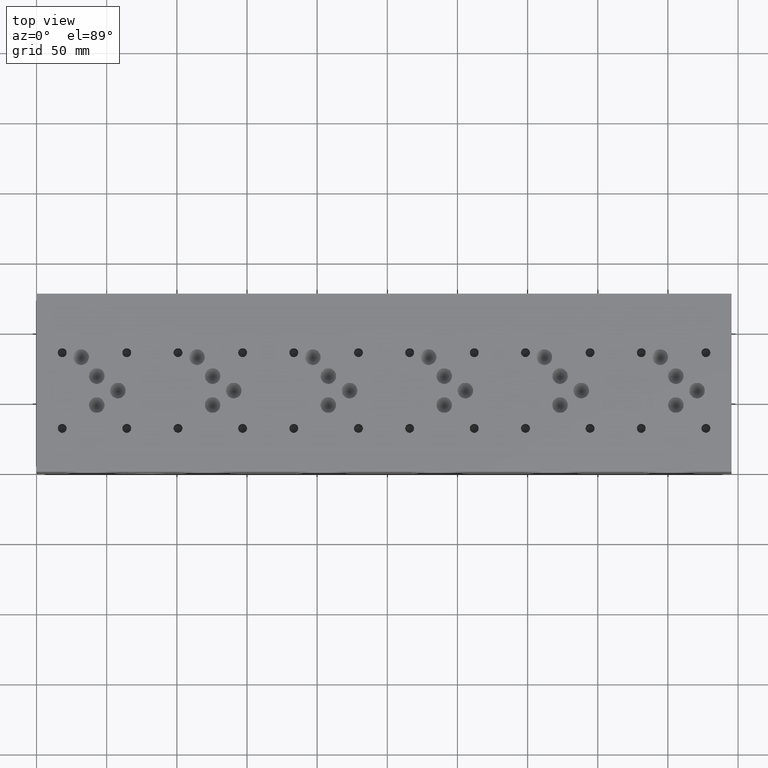
[diagram: clean part render]
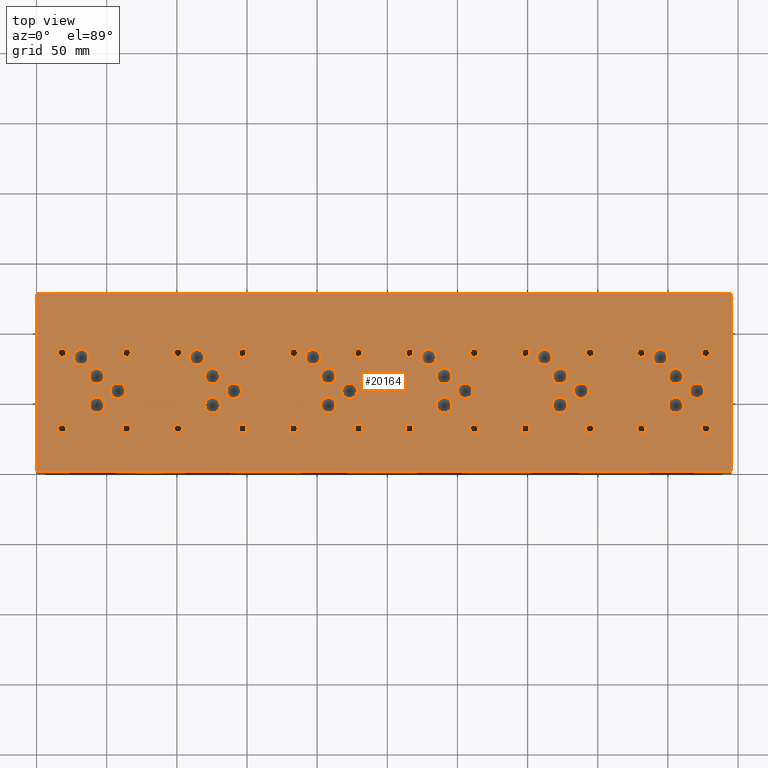
[diagram: same view with one face highlighted and labeled with its STEP entity id]
A machine part, top view. The second image highlights one B-rep face of the part: STEP entity #20164.
In plain terms, the highlighted planar face has unit normal (0, 0, 1).
Its self-contained STEP definition (entity closure, byte-faithful):
#943=CIRCLE('',#21228,5.55625);
#944=CIRCLE('',#21229,5.55625);
#947=CIRCLE('',#21234,5.55625);
#948=CIRCLE('',#21235,5.55625);
#951=CIRCLE('',#21240,5.5626);
#952=CIRCLE('',#21241,5.5626);
#955=CIRCLE('',#21246,5.5626);
#956=CIRCLE('',#21247,5.5626);
#959=CIRCLE('',#21252,5.5626);
#960=CIRCLE('',#21253,5.5626);
#963=CIRCLE('',#21258,5.5626);
#964=CIRCLE('',#21259,5.5626);
#967=CIRCLE('',#21264,5.5626);
#968=CIRCLE('',#21265,5.5626);
#971=CIRCLE('',#21270,5.5626);
#972=CIRCLE('',#21271,5.5626);
#975=CIRCLE('',#21276,5.5626);
#976=CIRCLE('',#21277,5.5626);
#979=CIRCLE('',#21282,5.5626);
#980=CIRCLE('',#21283,5.5626);
#983=CIRCLE('',#21288,5.5626);
#984=CIRCLE('',#21289,5.5626);
#987=CIRCLE('',#21294,5.5626);
#988=CIRCLE('',#21295,5.5626);
#991=CIRCLE('',#21300,5.5626);
#992=CIRCLE('',#21301,5.5626);
#995=CIRCLE('',#21306,5.5626);
#996=CIRCLE('',#21307,5.5626);
#999=CIRCLE('',#21312,5.5626);
#1000=CIRCLE('',#21313,5.5626);
#1003=CIRCLE('',#21318,5.5626);
#1004=CIRCLE('',#21319,5.5626);
#1007=CIRCLE('',#21324,5.5626);
#1008=CIRCLE('',#21325,5.5626);
#1011=CIRCLE('',#21330,5.5626);
#1012=CIRCLE('',#21331,5.5626);
#1015=CIRCLE('',#21336,5.5626);
#1016=CIRCLE('',#21337,5.5626);
#1019=CIRCLE('',#21342,5.5626);
#1020=CIRCLE('',#21343,5.5626);
#1023=CIRCLE('',#21348,5.5626);
#1024=CIRCLE('',#21349,5.5626);
#1027=CIRCLE('',#21354,5.5626);
#1028=CIRCLE('',#21355,5.5626);
#1031=CIRCLE('',#21360,5.5626);
#1032=CIRCLE('',#21361,5.5626);
#1035=CIRCLE('',#21366,5.5626);
#1036=CIRCLE('',#21367,5.5626);
#1042=CIRCLE('',#21376,3.175);
#1043=CIRCLE('',#21377,3.175);
#1049=CIRCLE('',#21387,3.175);
#1050=CIRCLE('',#21388,3.175);
#1056=CIRCLE('',#21398,3.175);
#1057=CIRCLE('',#21399,3.175);
#1063=CIRCLE('',#21409,3.175);
#1064=CIRCLE('',#21410,3.175);
#1070=CIRCLE('',#21420,3.175);
#1071=CIRCLE('',#21421,3.175);
#1077=CIRCLE('',#21431,3.175);
#1078=CIRCLE('',#21432,3.175);
#1084=CIRCLE('',#21442,3.175);
#1085=CIRCLE('',#21443,3.175);
#1091=CIRCLE('',#21453,3.175);
#1092=CIRCLE('',#21454,3.175);
#1098=CIRCLE('',#21464,3.175);
#1099=CIRCLE('',#21465,3.175);
#1105=CIRCLE('',#21475,3.175);
#1106=CIRCLE('',#21476,3.175);
#1112=CIRCLE('',#21486,3.175);
#1113=CIRCLE('',#21487,3.175);
#1119=CIRCLE('',#21497,3.175);
#1120=CIRCLE('',#21498,3.175);
#1126=CIRCLE('',#21508,3.175);
#1127=CIRCLE('',#21509,3.175);
#1133=CIRCLE('',#21519,3.175);
#1134=CIRCLE('',#21520,3.175);
#1140=CIRCLE('',#21530,3.175);
#1141=CIRCLE('',#21531,3.175);
#1147=CIRCLE('',#21541,3.175);
#1148=CIRCLE('',#21542,3.175);
#1154=CIRCLE('',#21552,3.175);
#1155=CIRCLE('',#21553,3.175);
#1161=CIRCLE('',#21563,3.175);
#1162=CIRCLE('',#21564,3.175);
#1168=CIRCLE('',#21574,3.175);
#1169=CIRCLE('',#21575,3.175);
#1175=CIRCLE('',#21585,3.175);
#1176=CIRCLE('',#21586,3.175);
#1182=CIRCLE('',#21596,3.175);
#1183=CIRCLE('',#21597,3.175);
#1189=CIRCLE('',#21607,3.175);
#1190=CIRCLE('',#21608,3.175);
#1196=CIRCLE('',#21618,3.175);
#1197=CIRCLE('',#21619,3.175);
#1203=CIRCLE('',#21629,3.175);
#1204=CIRCLE('',#21630,3.175);
#1851=FACE_BOUND('',#4164,.T.);
#1852=FACE_BOUND('',#4165,.T.);
#1853=FACE_BOUND('',#4166,.T.);
#1854=FACE_BOUND('',#4167,.T.);
#1855=FACE_BOUND('',#4168,.T.);
#1856=FACE_BOUND('',#4169,.T.);
#1857=FACE_BOUND('',#4170,.T.);
#1858=FACE_BOUND('',#4171,.T.);
#1859=FACE_BOUND('',#4172,.T.);
#1860=FACE_BOUND('',#4173,.T.);
#1861=FACE_BOUND('',#4174,.T.);
#1862=FACE_BOUND('',#4175,.T.);
#1863=FACE_BOUND('',#4176,.T.);
#1864=FACE_BOUND('',#4177,.T.);
#1865=FACE_BOUND('',#4178,.T.);
#1866=FACE_BOUND('',#4179,.T.);
#1867=FACE_BOUND('',#4180,.T.);
#1868=FACE_BOUND('',#4181,.T.);
#1869=FACE_BOUND('',#4182,.T.);
#1870=FACE_BOUND('',#4183,.T.);
#1871=FACE_BOUND('',#4184,.T.);
#1872=FACE_BOUND('',#4185,.T.);
#1873=FACE_BOUND('',#4186,.T.);
#1874=FACE_BOUND('',#4187,.T.);
#1875=FACE_BOUND('',#4188,.T.);
#1876=FACE_BOUND('',#4189,.T.);
#1877=FACE_BOUND('',#4190,.T.);
#1878=FACE_BOUND('',#4191,.T.);
#1879=FACE_BOUND('',#4192,.T.);
#1880=FACE_BOUND('',#4193,.T.);
#1881=FACE_BOUND('',#4194,.T.);
#1882=FACE_BOUND('',#4195,.T.);
#1883=FACE_BOUND('',#4196,.T.);
#1884=FACE_BOUND('',#4197,.T.);
#1885=FACE_BOUND('',#4198,.T.);
#1886=FACE_BOUND('',#4199,.T.);
#1887=FACE_BOUND('',#4200,.T.);
#1888=FACE_BOUND('',#4201,.T.);
#1889=FACE_BOUND('',#4202,.T.);
#1890=FACE_BOUND('',#4203,.T.);
#1891=FACE_BOUND('',#4204,.T.);
#1892=FACE_BOUND('',#4205,.T.);
#1893=FACE_BOUND('',#4206,.T.);
#1894=FACE_BOUND('',#4207,.T.);
#1895=FACE_BOUND('',#4208,.T.);
#1896=FACE_BOUND('',#4209,.T.);
#1897=FACE_BOUND('',#4210,.T.);
#1898=FACE_BOUND('',#4211,.T.);
#2952=FACE_OUTER_BOUND('',#4163,.T.);
#4163=EDGE_LOOP('',(#17838,#17839,#17840,#17841));
#4164=EDGE_LOOP('',(#17842,#17843));
#4165=EDGE_LOOP('',(#17844,#17845));
#4166=EDGE_LOOP('',(#17846,#17847));
#4167=EDGE_LOOP('',(#17848,#17849));
#4168=EDGE_LOOP('',(#17850,#17851));
#4169=EDGE_LOOP('',(#17852,#17853));
#4170=EDGE_LOOP('',(#17854,#17855));
#4171=EDGE_LOOP('',(#17856,#17857));
#4172=EDGE_LOOP('',(#17858,#17859));
#4173=EDGE_LOOP('',(#17860,#17861));
#4174=EDGE_LOOP('',(#17862,#17863));
#4175=EDGE_LOOP('',(#17864,#17865));
#4176=EDGE_LOOP('',(#17866,#17867));
#4177=EDGE_LOOP('',(#17868,#17869));
#4178=EDGE_LOOP('',(#17870,#17871));
#4179=EDGE_LOOP('',(#17872,#17873));
#4180=EDGE_LOOP('',(#17874,#17875));
#4181=EDGE_LOOP('',(#17876,#17877));
#4182=EDGE_LOOP('',(#17878,#17879));
#4183=EDGE_LOOP('',(#17880,#17881));
#4184=EDGE_LOOP('',(#17882,#17883));
#4185=EDGE_LOOP('',(#17884,#17885));
#4186=EDGE_LOOP('',(#17886,#17887));
#4187=EDGE_LOOP('',(#17888,#17889));
#4188=EDGE_LOOP('',(#17890,#17891));
#4189=EDGE_LOOP('',(#17892,#17893));
#4190=EDGE_LOOP('',(#17894,#17895));
#4191=EDGE_LOOP('',(#17896,#17897));
#4192=EDGE_LOOP('',(#17898,#17899));
#4193=EDGE_LOOP('',(#17900,#17901));
#4194=EDGE_LOOP('',(#17902,#17903));
#4195=EDGE_LOOP('',(#17904,#17905));
#4196=EDGE_LOOP('',(#17906,#17907));
#4197=EDGE_LOOP('',(#17908,#17909));
#4198=EDGE_LOOP('',(#17910,#17911));
#4199=EDGE_LOOP('',(#17912,#17913));
#4200=EDGE_LOOP('',(#17914,#17915));
#4201=EDGE_LOOP('',(#17916,#17917));
#4202=EDGE_LOOP('',(#17918,#17919));
#4203=EDGE_LOOP('',(#17920,#17921));
#4204=EDGE_LOOP('',(#17922,#17923));
#4205=EDGE_LOOP('',(#17924,#17925));
#4206=EDGE_LOOP('',(#17926,#17927));
#4207=EDGE_LOOP('',(#17928,#17929));
#4208=EDGE_LOOP('',(#17930,#17931));
#4209=EDGE_LOOP('',(#17932,#17933));
#4210=EDGE_LOOP('',(#17934,#17935));
#4211=EDGE_LOOP('',(#17936,#17937));
#4248=LINE('',#26302,#5919);
#4779=LINE('',#29132,#6450);
#4837=LINE('',#29403,#6508);
#5883=LINE('',#35232,#7554);
#5919=VECTOR('',#21701,10.);
#6450=VECTOR('',#22486,10.);
#6508=VECTOR('',#22598,10.);
#7554=VECTOR('',#26218,10.);
#7579=VERTEX_POINT('',#26299);
#7580=VERTEX_POINT('',#26301);
#8240=VERTEX_POINT('',#29130);
#8298=VERTEX_POINT('',#29402);
#9206=VERTEX_POINT('',#34397);
#9207=VERTEX_POINT('',#34398);
#9211=VERTEX_POINT('',#34410);
#9212=VERTEX_POINT('',#34411);
#9216=VERTEX_POINT('',#34423);
#9217=VERTEX_POINT('',#34424);
#9221=VERTEX_POINT('',#34436);
#9222=VERTEX_POINT('',#34437);
#9226=VERTEX_POINT('',#34449);
#9227=VERTEX_POINT('',#34450);
#9231=VERTEX_POINT('',#34462);
#9232=VERTEX_POINT('',#34463);
#9236=VERTEX_POINT('',#34475);
#9237=VERTEX_POINT('',#34476);
#9241=VERTEX_POINT('',#34488);
#9242=VERTEX_POINT('',#34489);
#9246=VERTEX_POINT('',#34501);
#9247=VERTEX_POINT('',#34502);
#9251=VERTEX_POINT('',#34514);
#9252=VERTEX_POINT('',#34515);
#9256=VERTEX_POINT('',#34527);
#9257=VERTEX_POINT('',#34528);
#9261=VERTEX_POINT('',#34540);
#9262=VERTEX_POINT('',#34541);
#9266=VERTEX_POINT('',#34553);
#9267=VERTEX_POINT('',#34554);
#9271=VERTEX_POINT('',#34566);
#9272=VERTEX_POINT('',#34567);
#9276=VERTEX_POINT('',#34579);
#9277=VERTEX_POINT('',#34580);
#9281=VERTEX_POINT('',#34592);
#9282=VERTEX_POINT('',#34593);
#9286=VERTEX_POINT('',#34605);
#9287=VERTEX_POINT('',#34606);
#9291=VERTEX_POINT('',#34618);
#9292=VERTEX_POINT('',#34619);
#9296=VERTEX_POINT('',#34631);
#9297=VERTEX_POINT('',#34632);
#9301=VERTEX_POINT('',#34644);
#9302=VERTEX_POINT('',#34645);
#9306=VERTEX_POINT('',#34657);
#9307=VERTEX_POINT('',#34658);
#9311=VERTEX_POINT('',#34670);
#9312=VERTEX_POINT('',#34671);
#9316=VERTEX_POINT('',#34683);
#9317=VERTEX_POINT('',#34684);
#9321=VERTEX_POINT('',#34696);
#9322=VERTEX_POINT('',#34697);
#9329=VERTEX_POINT('',#34716);
#9330=VERTEX_POINT('',#34717);
#9337=VERTEX_POINT('',#34738);
#9338=VERTEX_POINT('',#34739);
#9345=VERTEX_POINT('',#34760);
#9346=VERTEX_POINT('',#34761);
#9353=VERTEX_POINT('',#34782);
#9354=VERTEX_POINT('',#34783);
#9361=VERTEX_POINT('',#34804);
#9362=VERTEX_POINT('',#34805);
#9369=VERTEX_POINT('',#34826);
#9370=VERTEX_POINT('',#34827);
#9377=VERTEX_POINT('',#34848);
#9378=VERTEX_POINT('',#34849);
#9385=VERTEX_POINT('',#34870);
#9386=VERTEX_POINT('',#34871);
#9393=VERTEX_POINT('',#34892);
#9394=VERTEX_POINT('',#34893);
#9401=VERTEX_POINT('',#34914);
#9402=VERTEX_POINT('',#34915);
#9409=VERTEX_POINT('',#34936);
#9410=VERTEX_POINT('',#34937);
#9417=VERTEX_POINT('',#34958);
#9418=VERTEX_POINT('',#34959);
#9425=VERTEX_POINT('',#34980);
#9426=VERTEX_POINT('',#34981);
#9433=VERTEX_POINT('',#35002);
#9434=VERTEX_POINT('',#35003);
#9441=VERTEX_POINT('',#35024);
#9442=VERTEX_POINT('',#35025);
#9449=VERTEX_POINT('',#35046);
#9450=VERTEX_POINT('',#35047);
#9457=VERTEX_POINT('',#35068);
#9458=VERTEX_POINT('',#35069);
#9465=VERTEX_POINT('',#35090);
#9466=VERTEX_POINT('',#35091);
#9473=VERTEX_POINT('',#35112);
#9474=VERTEX_POINT('',#35113);
#9481=VERTEX_POINT('',#35134);
#9482=VERTEX_POINT('',#35135);
#9489=VERTEX_POINT('',#35156);
#9490=VERTEX_POINT('',#35157);
#9497=VERTEX_POINT('',#35178);
#9498=VERTEX_POINT('',#35179);
#9505=VERTEX_POINT('',#35200);
#9506=VERTEX_POINT('',#35201);
#9513=VERTEX_POINT('',#35222);
#9514=VERTEX_POINT('',#35223);
#9550=EDGE_CURVE('',#7580,#7579,#4248,.T.);
#10357=EDGE_CURVE('',#7579,#8240,#4779,.T.);
#10439=EDGE_CURVE('',#8298,#7580,#4837,.T.);
#11941=EDGE_CURVE('',#9206,#9207,#943,.T.);
#11942=EDGE_CURVE('',#9207,#9206,#944,.T.);
#11947=EDGE_CURVE('',#9211,#9212,#947,.T.);
#11948=EDGE_CURVE('',#9212,#9211,#948,.T.);
#11953=EDGE_CURVE('',#9216,#9217,#951,.T.);
#11954=EDGE_CURVE('',#9217,#9216,#952,.T.);
#11959=EDGE_CURVE('',#9221,#9222,#955,.T.);
#11960=EDGE_CURVE('',#9222,#9221,#956,.T.);
#11965=EDGE_CURVE('',#9226,#9227,#959,.T.);
#11966=EDGE_CURVE('',#9227,#9226,#960,.T.);
#11971=EDGE_CURVE('',#9231,#9232,#963,.T.);
#11972=EDGE_CURVE('',#9232,#9231,#964,.T.);
#11977=EDGE_CURVE('',#9236,#9237,#967,.T.);
#11978=EDGE_CURVE('',#9237,#9236,#968,.T.);
#11983=EDGE_CURVE('',#9241,#9242,#971,.T.);
#11984=EDGE_CURVE('',#9242,#9241,#972,.T.);
#11989=EDGE_CURVE('',#9246,#9247,#975,.T.);
#11990=EDGE_CURVE('',#9247,#9246,#976,.T.);
#11995=EDGE_CURVE('',#9251,#9252,#979,.T.);
#11996=EDGE_CURVE('',#9252,#9251,#980,.T.);
#12001=EDGE_CURVE('',#9256,#9257,#983,.T.);
#12002=EDGE_CURVE('',#9257,#9256,#984,.T.);
#12007=EDGE_CURVE('',#9261,#9262,#987,.T.);
#12008=EDGE_CURVE('',#9262,#9261,#988,.T.);
#12013=EDGE_CURVE('',#9266,#9267,#991,.T.);
#12014=EDGE_CURVE('',#9267,#9266,#992,.T.);
#12019=EDGE_CURVE('',#9271,#9272,#995,.T.);
#12020=EDGE_CURVE('',#9272,#9271,#996,.T.);
#12025=EDGE_CURVE('',#9276,#9277,#999,.T.);
#12026=EDGE_CURVE('',#9277,#9276,#1000,.T.);
#12031=EDGE_CURVE('',#9281,#9282,#1003,.T.);
#12032=EDGE_CURVE('',#9282,#9281,#1004,.T.);
#12037=EDGE_CURVE('',#9286,#9287,#1007,.T.);
#12038=EDGE_CURVE('',#9287,#9286,#1008,.T.);
#12043=EDGE_CURVE('',#9291,#9292,#1011,.T.);
#12044=EDGE_CURVE('',#9292,#9291,#1012,.T.);
#12049=EDGE_CURVE('',#9296,#9297,#1015,.T.);
#12050=EDGE_CURVE('',#9297,#9296,#1016,.T.);
#12055=EDGE_CURVE('',#9301,#9302,#1019,.T.);
#12056=EDGE_CURVE('',#9302,#9301,#1020,.T.);
#12061=EDGE_CURVE('',#9306,#9307,#1023,.T.);
#12062=EDGE_CURVE('',#9307,#9306,#1024,.T.);
#12067=EDGE_CURVE('',#9311,#9312,#1027,.T.);
#12068=EDGE_CURVE('',#9312,#9311,#1028,.T.);
#12073=EDGE_CURVE('',#9316,#9317,#1031,.T.);
#12074=EDGE_CURVE('',#9317,#9316,#1032,.T.);
#12079=EDGE_CURVE('',#9321,#9322,#1035,.T.);
#12080=EDGE_CURVE('',#9322,#9321,#1036,.T.);
#12088=EDGE_CURVE('',#9329,#9330,#1042,.T.);
#12089=EDGE_CURVE('',#9330,#9329,#1043,.T.);
#12098=EDGE_CURVE('',#9337,#9338,#1049,.T.);
#12099=EDGE_CURVE('',#9338,#9337,#1050,.T.);
#12108=EDGE_CURVE('',#9345,#9346,#1056,.T.);
#12109=EDGE_CURVE('',#9346,#9345,#1057,.T.);
#12118=EDGE_CURVE('',#9353,#9354,#1063,.T.);
#12119=EDGE_CURVE('',#9354,#9353,#1064,.T.);
#12128=EDGE_CURVE('',#9361,#9362,#1070,.T.);
#12129=EDGE_CURVE('',#9362,#9361,#1071,.T.);
#12138=EDGE_CURVE('',#9369,#9370,#1077,.T.);
#12139=EDGE_CURVE('',#9370,#9369,#1078,.T.);
#12148=EDGE_CURVE('',#9377,#9378,#1084,.T.);
#12149=EDGE_CURVE('',#9378,#9377,#1085,.T.);
#12158=EDGE_CURVE('',#9385,#9386,#1091,.T.);
#12159=EDGE_CURVE('',#9386,#9385,#1092,.T.);
#12168=EDGE_CURVE('',#9393,#9394,#1098,.T.);
#12169=EDGE_CURVE('',#9394,#9393,#1099,.T.);
#12178=EDGE_CURVE('',#9401,#9402,#1105,.T.);
#12179=EDGE_CURVE('',#9402,#9401,#1106,.T.);
#12188=EDGE_CURVE('',#9409,#9410,#1112,.T.);
#12189=EDGE_CURVE('',#9410,#9409,#1113,.T.);
#12198=EDGE_CURVE('',#9417,#9418,#1119,.T.);
#12199=EDGE_CURVE('',#9418,#9417,#1120,.T.);
#12208=EDGE_CURVE('',#9425,#9426,#1126,.T.);
#12209=EDGE_CURVE('',#9426,#9425,#1127,.T.);
#12218=EDGE_CURVE('',#9433,#9434,#1133,.T.);
#12219=EDGE_CURVE('',#9434,#9433,#1134,.T.);
#12228=EDGE_CURVE('',#9441,#9442,#1140,.T.);
#12229=EDGE_CURVE('',#9442,#9441,#1141,.T.);
#12238=EDGE_CURVE('',#9449,#9450,#1147,.T.);
#12239=EDGE_CURVE('',#9450,#9449,#1148,.T.);
#12248=EDGE_CURVE('',#9457,#9458,#1154,.T.);
#12249=EDGE_CURVE('',#9458,#9457,#1155,.T.);
#12258=EDGE_CURVE('',#9465,#9466,#1161,.T.);
#12259=EDGE_CURVE('',#9466,#9465,#1162,.T.);
#12268=EDGE_CURVE('',#9473,#9474,#1168,.T.);
#12269=EDGE_CURVE('',#9474,#9473,#1169,.T.);
#12278=EDGE_CURVE('',#9481,#9482,#1175,.T.);
#12279=EDGE_CURVE('',#9482,#9481,#1176,.T.);
#12288=EDGE_CURVE('',#9489,#9490,#1182,.T.);
#12289=EDGE_CURVE('',#9490,#9489,#1183,.T.);
#12298=EDGE_CURVE('',#9497,#9498,#1189,.T.);
#12299=EDGE_CURVE('',#9498,#9497,#1190,.T.);
#12308=EDGE_CURVE('',#9505,#9506,#1196,.T.);
#12309=EDGE_CURVE('',#9506,#9505,#1197,.T.);
#12318=EDGE_CURVE('',#9513,#9514,#1203,.T.);
#12319=EDGE_CURVE('',#9514,#9513,#1204,.T.);
#12323=EDGE_CURVE('',#8240,#8298,#5883,.T.);
#17838=ORIENTED_EDGE('',*,*,#9550,.T.);
#17839=ORIENTED_EDGE('',*,*,#10357,.T.);
#17840=ORIENTED_EDGE('',*,*,#12323,.T.);
#17841=ORIENTED_EDGE('',*,*,#10439,.T.);
#17842=ORIENTED_EDGE('',*,*,#11941,.T.);
#17843=ORIENTED_EDGE('',*,*,#11942,.T.);
#17844=ORIENTED_EDGE('',*,*,#11947,.T.);
#17845=ORIENTED_EDGE('',*,*,#11948,.T.);
#17846=ORIENTED_EDGE('',*,*,#11953,.T.);
#17847=ORIENTED_EDGE('',*,*,#11954,.T.);
#17848=ORIENTED_EDGE('',*,*,#11959,.T.);
#17849=ORIENTED_EDGE('',*,*,#11960,.T.);
#17850=ORIENTED_EDGE('',*,*,#11965,.T.);
#17851=ORIENTED_EDGE('',*,*,#11966,.T.);
#17852=ORIENTED_EDGE('',*,*,#11971,.T.);
#17853=ORIENTED_EDGE('',*,*,#11972,.T.);
#17854=ORIENTED_EDGE('',*,*,#11977,.T.);
#17855=ORIENTED_EDGE('',*,*,#11978,.T.);
#17856=ORIENTED_EDGE('',*,*,#11983,.T.);
#17857=ORIENTED_EDGE('',*,*,#11984,.T.);
#17858=ORIENTED_EDGE('',*,*,#11989,.T.);
#17859=ORIENTED_EDGE('',*,*,#11990,.T.);
#17860=ORIENTED_EDGE('',*,*,#11995,.T.);
#17861=ORIENTED_EDGE('',*,*,#11996,.T.);
#17862=ORIENTED_EDGE('',*,*,#12001,.T.);
#17863=ORIENTED_EDGE('',*,*,#12002,.T.);
#17864=ORIENTED_EDGE('',*,*,#12007,.T.);
#17865=ORIENTED_EDGE('',*,*,#12008,.T.);
#17866=ORIENTED_EDGE('',*,*,#12013,.T.);
#17867=ORIENTED_EDGE('',*,*,#12014,.T.);
#17868=ORIENTED_EDGE('',*,*,#12019,.T.);
#17869=ORIENTED_EDGE('',*,*,#12020,.T.);
#17870=ORIENTED_EDGE('',*,*,#12025,.T.);
#17871=ORIENTED_EDGE('',*,*,#12026,.T.);
#17872=ORIENTED_EDGE('',*,*,#12031,.T.);
#17873=ORIENTED_EDGE('',*,*,#12032,.T.);
#17874=ORIENTED_EDGE('',*,*,#12037,.T.);
#17875=ORIENTED_EDGE('',*,*,#12038,.T.);
#17876=ORIENTED_EDGE('',*,*,#12043,.T.);
#17877=ORIENTED_EDGE('',*,*,#12044,.T.);
#17878=ORIENTED_EDGE('',*,*,#12049,.T.);
#17879=ORIENTED_EDGE('',*,*,#12050,.T.);
#17880=ORIENTED_EDGE('',*,*,#12055,.T.);
#17881=ORIENTED_EDGE('',*,*,#12056,.T.);
#17882=ORIENTED_EDGE('',*,*,#12061,.T.);
#17883=ORIENTED_EDGE('',*,*,#12062,.T.);
#17884=ORIENTED_EDGE('',*,*,#12067,.T.);
#17885=ORIENTED_EDGE('',*,*,#12068,.T.);
#17886=ORIENTED_EDGE('',*,*,#12073,.T.);
#17887=ORIENTED_EDGE('',*,*,#12074,.T.);
#17888=ORIENTED_EDGE('',*,*,#12079,.T.);
#17889=ORIENTED_EDGE('',*,*,#12080,.T.);
#17890=ORIENTED_EDGE('',*,*,#12088,.T.);
#17891=ORIENTED_EDGE('',*,*,#12089,.T.);
#17892=ORIENTED_EDGE('',*,*,#12098,.T.);
#17893=ORIENTED_EDGE('',*,*,#12099,.T.);
#17894=ORIENTED_EDGE('',*,*,#12108,.T.);
#17895=ORIENTED_EDGE('',*,*,#12109,.T.);
#17896=ORIENTED_EDGE('',*,*,#12118,.T.);
#17897=ORIENTED_EDGE('',*,*,#12119,.T.);
#17898=ORIENTED_EDGE('',*,*,#12128,.T.);
#17899=ORIENTED_EDGE('',*,*,#12129,.T.);
#17900=ORIENTED_EDGE('',*,*,#12138,.T.);
#17901=ORIENTED_EDGE('',*,*,#12139,.T.);
#17902=ORIENTED_EDGE('',*,*,#12148,.T.);
#17903=ORIENTED_EDGE('',*,*,#12149,.T.);
#17904=ORIENTED_EDGE('',*,*,#12158,.T.);
#17905=ORIENTED_EDGE('',*,*,#12159,.T.);
#17906=ORIENTED_EDGE('',*,*,#12168,.T.);
#17907=ORIENTED_EDGE('',*,*,#12169,.T.);
#17908=ORIENTED_EDGE('',*,*,#12178,.T.);
#17909=ORIENTED_EDGE('',*,*,#12179,.T.);
#17910=ORIENTED_EDGE('',*,*,#12188,.T.);
#17911=ORIENTED_EDGE('',*,*,#12189,.T.);
#17912=ORIENTED_EDGE('',*,*,#12198,.T.);
#17913=ORIENTED_EDGE('',*,*,#12199,.T.);
#17914=ORIENTED_EDGE('',*,*,#12208,.T.);
#17915=ORIENTED_EDGE('',*,*,#12209,.T.);
#17916=ORIENTED_EDGE('',*,*,#12218,.T.);
#17917=ORIENTED_EDGE('',*,*,#12219,.T.);
#17918=ORIENTED_EDGE('',*,*,#12228,.T.);
#17919=ORIENTED_EDGE('',*,*,#12229,.T.);
#17920=ORIENTED_EDGE('',*,*,#12238,.T.);
#17921=ORIENTED_EDGE('',*,*,#12239,.T.);
#17922=ORIENTED_EDGE('',*,*,#12248,.T.);
#17923=ORIENTED_EDGE('',*,*,#12249,.T.);
#17924=ORIENTED_EDGE('',*,*,#12258,.T.);
#17925=ORIENTED_EDGE('',*,*,#12259,.T.);
#17926=ORIENTED_EDGE('',*,*,#12268,.T.);
#17927=ORIENTED_EDGE('',*,*,#12269,.T.);
#17928=ORIENTED_EDGE('',*,*,#12278,.T.);
#17929=ORIENTED_EDGE('',*,*,#12279,.T.);
#17930=ORIENTED_EDGE('',*,*,#12288,.T.);
#17931=ORIENTED_EDGE('',*,*,#12289,.T.);
#17932=ORIENTED_EDGE('',*,*,#12298,.T.);
#17933=ORIENTED_EDGE('',*,*,#12299,.T.);
#17934=ORIENTED_EDGE('',*,*,#12308,.T.);
#17935=ORIENTED_EDGE('',*,*,#12309,.T.);
#17936=ORIENTED_EDGE('',*,*,#12318,.T.);
#17937=ORIENTED_EDGE('',*,*,#12319,.T.);
#18452=PLANE('',#21636);
#20164=ADVANCED_FACE('',(#2952,#1851,#1852,#1853,#1854,#1855,#1856,#1857,
#1858,#1859,#1860,#1861,#1862,#1863,#1864,#1865,#1866,#1867,#1868,#1869,
#1870,#1871,#1872,#1873,#1874,#1875,#1876,#1877,#1878,#1879,#1880,#1881,
#1882,#1883,#1884,#1885,#1886,#1887,#1888,#1889,#1890,#1891,#1892,#1893,
#1894,#1895,#1896,#1897,#1898),#18452,.T.);
#21228=AXIS2_PLACEMENT_3D('',#34399,#25286,#25287);
#21229=AXIS2_PLACEMENT_3D('',#34400,#25288,#25289);
#21234=AXIS2_PLACEMENT_3D('',#34412,#25300,#25301);
#21235=AXIS2_PLACEMENT_3D('',#34413,#25302,#25303);
#21240=AXIS2_PLACEMENT_3D('',#34425,#25314,#25315);
#21241=AXIS2_PLACEMENT_3D('',#34426,#25316,#25317);
#21246=AXIS2_PLACEMENT_3D('',#34438,#25328,#25329);
#21247=AXIS2_PLACEMENT_3D('',#34439,#25330,#25331);
#21252=AXIS2_PLACEMENT_3D('',#34451,#25342,#25343);
#21253=AXIS2_PLACEMENT_3D('',#34452,#25344,#25345);
#21258=AXIS2_PLACEMENT_3D('',#34464,#25356,#25357);
#21259=AXIS2_PLACEMENT_3D('',#34465,#25358,#25359);
#21264=AXIS2_PLACEMENT_3D('',#34477,#25370,#25371);
#21265=AXIS2_PLACEMENT_3D('',#34478,#25372,#25373);
#21270=AXIS2_PLACEMENT_3D('',#34490,#25384,#25385);
#21271=AXIS2_PLACEMENT_3D('',#34491,#25386,#25387);
#21276=AXIS2_PLACEMENT_3D('',#34503,#25398,#25399);
#21277=AXIS2_PLACEMENT_3D('',#34504,#25400,#25401);
#21282=AXIS2_PLACEMENT_3D('',#34516,#25412,#25413);
#21283=AXIS2_PLACEMENT_3D('',#34517,#25414,#25415);
#21288=AXIS2_PLACEMENT_3D('',#34529,#25426,#25427);
#21289=AXIS2_PLACEMENT_3D('',#34530,#25428,#25429);
#21294=AXIS2_PLACEMENT_3D('',#34542,#25440,#25441);
#21295=AXIS2_PLACEMENT_3D('',#34543,#25442,#25443);
#21300=AXIS2_PLACEMENT_3D('',#34555,#25454,#25455);
#21301=AXIS2_PLACEMENT_3D('',#34556,#25456,#25457);
#21306=AXIS2_PLACEMENT_3D('',#34568,#25468,#25469);
#21307=AXIS2_PLACEMENT_3D('',#34569,#25470,#25471);
#21312=AXIS2_PLACEMENT_3D('',#34581,#25482,#25483);
#21313=AXIS2_PLACEMENT_3D('',#34582,#25484,#25485);
#21318=AXIS2_PLACEMENT_3D('',#34594,#25496,#25497);
#21319=AXIS2_PLACEMENT_3D('',#34595,#25498,#25499);
#21324=AXIS2_PLACEMENT_3D('',#34607,#25510,#25511);
#21325=AXIS2_PLACEMENT_3D('',#34608,#25512,#25513);
#21330=AXIS2_PLACEMENT_3D('',#34620,#25524,#25525);
#21331=AXIS2_PLACEMENT_3D('',#34621,#25526,#25527);
#21336=AXIS2_PLACEMENT_3D('',#34633,#25538,#25539);
#21337=AXIS2_PLACEMENT_3D('',#34634,#25540,#25541);
#21342=AXIS2_PLACEMENT_3D('',#34646,#25552,#25553);
#21343=AXIS2_PLACEMENT_3D('',#34647,#25554,#25555);
#21348=AXIS2_PLACEMENT_3D('',#34659,#25566,#25567);
#21349=AXIS2_PLACEMENT_3D('',#34660,#25568,#25569);
#21354=AXIS2_PLACEMENT_3D('',#34672,#25580,#25581);
#21355=AXIS2_PLACEMENT_3D('',#34673,#25582,#25583);
#21360=AXIS2_PLACEMENT_3D('',#34685,#25594,#25595);
#21361=AXIS2_PLACEMENT_3D('',#34686,#25596,#25597);
#21366=AXIS2_PLACEMENT_3D('',#34698,#25608,#25609);
#21367=AXIS2_PLACEMENT_3D('',#34699,#25610,#25611);
#21376=AXIS2_PLACEMENT_3D('',#34718,#25630,#25631);
#21377=AXIS2_PLACEMENT_3D('',#34719,#25632,#25633);
#21387=AXIS2_PLACEMENT_3D('',#34740,#25655,#25656);
#21388=AXIS2_PLACEMENT_3D('',#34741,#25657,#25658);
#21398=AXIS2_PLACEMENT_3D('',#34762,#25680,#25681);
#21399=AXIS2_PLACEMENT_3D('',#34763,#25682,#25683);
#21409=AXIS2_PLACEMENT_3D('',#34784,#25705,#25706);
#21410=AXIS2_PLACEMENT_3D('',#34785,#25707,#25708);
#21420=AXIS2_PLACEMENT_3D('',#34806,#25730,#25731);
#21421=AXIS2_PLACEMENT_3D('',#34807,#25732,#25733);
#21431=AXIS2_PLACEMENT_3D('',#34828,#25755,#25756);
#21432=AXIS2_PLACEMENT_3D('',#34829,#25757,#25758);
#21442=AXIS2_PLACEMENT_3D('',#34850,#25780,#25781);
#21443=AXIS2_PLACEMENT_3D('',#34851,#25782,#25783);
#21453=AXIS2_PLACEMENT_3D('',#34872,#25805,#25806);
#21454=AXIS2_PLACEMENT_3D('',#34873,#25807,#25808);
#21464=AXIS2_PLACEMENT_3D('',#34894,#25830,#25831);
#21465=AXIS2_PLACEMENT_3D('',#34895,#25832,#25833);
#21475=AXIS2_PLACEMENT_3D('',#34916,#25855,#25856);
#21476=AXIS2_PLACEMENT_3D('',#34917,#25857,#25858);
#21486=AXIS2_PLACEMENT_3D('',#34938,#25880,#25881);
#21487=AXIS2_PLACEMENT_3D('',#34939,#25882,#25883);
#21497=AXIS2_PLACEMENT_3D('',#34960,#25905,#25906);
#21498=AXIS2_PLACEMENT_3D('',#34961,#25907,#25908);
#21508=AXIS2_PLACEMENT_3D('',#34982,#25930,#25931);
#21509=AXIS2_PLACEMENT_3D('',#34983,#25932,#25933);
#21519=AXIS2_PLACEMENT_3D('',#35004,#25955,#25956);
#21520=AXIS2_PLACEMENT_3D('',#35005,#25957,#25958);
#21530=AXIS2_PLACEMENT_3D('',#35026,#25980,#25981);
#21531=AXIS2_PLACEMENT_3D('',#35027,#25982,#25983);
#21541=AXIS2_PLACEMENT_3D('',#35048,#26005,#26006);
#21542=AXIS2_PLACEMENT_3D('',#35049,#26007,#26008);
#21552=AXIS2_PLACEMENT_3D('',#35070,#26030,#26031);
#21553=AXIS2_PLACEMENT_3D('',#35071,#26032,#26033);
#21563=AXIS2_PLACEMENT_3D('',#35092,#26055,#26056);
#21564=AXIS2_PLACEMENT_3D('',#35093,#26057,#26058);
#21574=AXIS2_PLACEMENT_3D('',#35114,#26080,#26081);
#21575=AXIS2_PLACEMENT_3D('',#35115,#26082,#26083);
#21585=AXIS2_PLACEMENT_3D('',#35136,#26105,#26106);
#21586=AXIS2_PLACEMENT_3D('',#35137,#26107,#26108);
#21596=AXIS2_PLACEMENT_3D('',#35158,#26130,#26131);
#21597=AXIS2_PLACEMENT_3D('',#35159,#26132,#26133);
#21607=AXIS2_PLACEMENT_3D('',#35180,#26155,#26156);
#21608=AXIS2_PLACEMENT_3D('',#35181,#26157,#26158);
#21618=AXIS2_PLACEMENT_3D('',#35202,#26180,#26181);
#21619=AXIS2_PLACEMENT_3D('',#35203,#26182,#26183);
#21629=AXIS2_PLACEMENT_3D('',#35224,#26205,#26206);
#21630=AXIS2_PLACEMENT_3D('',#35225,#26207,#26208);
#21636=AXIS2_PLACEMENT_3D('',#35235,#26223,#26224);
#21701=DIRECTION('',(1.,0.,0.));
#22486=DIRECTION('',(0.,1.,0.));
#22598=DIRECTION('',(0.,-1.,0.));
#25286=DIRECTION('center_axis',(0.,0.,-1.));
#25287=DIRECTION('ref_axis',(1.,0.,0.));
#25288=DIRECTION('center_axis',(0.,0.,-1.));
#25289=DIRECTION('ref_axis',(1.,0.,0.));
#25300=DIRECTION('center_axis',(0.,0.,-1.));
#25301=DIRECTION('ref_axis',(1.,0.,0.));
#25302=DIRECTION('center_axis',(0.,0.,-1.));
#25303=DIRECTION('ref_axis',(1.,0.,0.));
#25314=DIRECTION('center_axis',(0.,0.,-1.));
#25315=DIRECTION('ref_axis',(1.,0.,0.));
#25316=DIRECTION('center_axis',(0.,0.,-1.));
#25317=DIRECTION('ref_axis',(1.,0.,0.));
#25328=DIRECTION('center_axis',(0.,0.,-1.));
#25329=DIRECTION('ref_axis',(1.,0.,0.));
#25330=DIRECTION('center_axis',(0.,0.,-1.));
#25331=DIRECTION('ref_axis',(1.,0.,0.));
#25342=DIRECTION('center_axis',(0.,0.,-1.));
#25343=DIRECTION('ref_axis',(1.,0.,0.));
#25344=DIRECTION('center_axis',(0.,0.,-1.));
#25345=DIRECTION('ref_axis',(1.,0.,0.));
#25356=DIRECTION('center_axis',(0.,0.,-1.));
#25357=DIRECTION('ref_axis',(1.,0.,0.));
#25358=DIRECTION('center_axis',(0.,0.,-1.));
#25359=DIRECTION('ref_axis',(1.,0.,0.));
#25370=DIRECTION('center_axis',(0.,0.,-1.));
#25371=DIRECTION('ref_axis',(1.,0.,0.));
#25372=DIRECTION('center_axis',(0.,0.,-1.));
#25373=DIRECTION('ref_axis',(1.,0.,0.));
#25384=DIRECTION('center_axis',(0.,0.,-1.));
#25385=DIRECTION('ref_axis',(1.,0.,0.));
#25386=DIRECTION('center_axis',(0.,0.,-1.));
#25387=DIRECTION('ref_axis',(1.,0.,0.));
#25398=DIRECTION('center_axis',(0.,0.,-1.));
#25399=DIRECTION('ref_axis',(1.,0.,0.));
#25400=DIRECTION('center_axis',(0.,0.,-1.));
#25401=DIRECTION('ref_axis',(1.,0.,0.));
#25412=DIRECTION('center_axis',(0.,0.,-1.));
#25413=DIRECTION('ref_axis',(1.,0.,0.));
#25414=DIRECTION('center_axis',(0.,0.,-1.));
#25415=DIRECTION('ref_axis',(1.,0.,0.));
#25426=DIRECTION('center_axis',(0.,0.,-1.));
#25427=DIRECTION('ref_axis',(1.,0.,0.));
#25428=DIRECTION('center_axis',(0.,0.,-1.));
#25429=DIRECTION('ref_axis',(1.,0.,0.));
#25440=DIRECTION('center_axis',(0.,0.,-1.));
#25441=DIRECTION('ref_axis',(1.,0.,0.));
#25442=DIRECTION('center_axis',(0.,0.,-1.));
#25443=DIRECTION('ref_axis',(1.,0.,0.));
#25454=DIRECTION('center_axis',(0.,0.,-1.));
#25455=DIRECTION('ref_axis',(1.,0.,0.));
#25456=DIRECTION('center_axis',(0.,0.,-1.));
#25457=DIRECTION('ref_axis',(1.,0.,0.));
#25468=DIRECTION('center_axis',(0.,0.,-1.));
#25469=DIRECTION('ref_axis',(1.,0.,0.));
#25470=DIRECTION('center_axis',(0.,0.,-1.));
#25471=DIRECTION('ref_axis',(1.,0.,0.));
#25482=DIRECTION('center_axis',(0.,0.,-1.));
#25483=DIRECTION('ref_axis',(1.,0.,0.));
#25484=DIRECTION('center_axis',(0.,0.,-1.));
#25485=DIRECTION('ref_axis',(1.,0.,0.));
#25496=DIRECTION('center_axis',(0.,0.,-1.));
#25497=DIRECTION('ref_axis',(1.,0.,0.));
#25498=DIRECTION('center_axis',(0.,0.,-1.));
#25499=DIRECTION('ref_axis',(1.,0.,0.));
#25510=DIRECTION('center_axis',(0.,0.,-1.));
#25511=DIRECTION('ref_axis',(1.,0.,0.));
#25512=DIRECTION('center_axis',(0.,0.,-1.));
#25513=DIRECTION('ref_axis',(1.,0.,0.));
#25524=DIRECTION('center_axis',(0.,0.,-1.));
#25525=DIRECTION('ref_axis',(1.,0.,0.));
#25526=DIRECTION('center_axis',(0.,0.,-1.));
#25527=DIRECTION('ref_axis',(1.,0.,0.));
#25538=DIRECTION('center_axis',(0.,0.,-1.));
#25539=DIRECTION('ref_axis',(1.,0.,0.));
#25540=DIRECTION('center_axis',(0.,0.,-1.));
#25541=DIRECTION('ref_axis',(1.,0.,0.));
#25552=DIRECTION('center_axis',(0.,0.,-1.));
#25553=DIRECTION('ref_axis',(1.,0.,0.));
#25554=DIRECTION('center_axis',(0.,0.,-1.));
#25555=DIRECTION('ref_axis',(1.,0.,0.));
#25566=DIRECTION('center_axis',(0.,0.,-1.));
#25567=DIRECTION('ref_axis',(1.,0.,0.));
#25568=DIRECTION('center_axis',(0.,0.,-1.));
#25569=DIRECTION('ref_axis',(1.,0.,0.));
#25580=DIRECTION('center_axis',(0.,0.,-1.));
#25581=DIRECTION('ref_axis',(1.,0.,0.));
#25582=DIRECTION('center_axis',(0.,0.,-1.));
#25583=DIRECTION('ref_axis',(1.,0.,0.));
#25594=DIRECTION('center_axis',(0.,0.,-1.));
#25595=DIRECTION('ref_axis',(1.,0.,0.));
#25596=DIRECTION('center_axis',(0.,0.,-1.));
#25597=DIRECTION('ref_axis',(1.,0.,0.));
#25608=DIRECTION('center_axis',(0.,0.,-1.));
#25609=DIRECTION('ref_axis',(1.,0.,0.));
#25610=DIRECTION('center_axis',(0.,0.,-1.));
#25611=DIRECTION('ref_axis',(1.,0.,0.));
#25630=DIRECTION('center_axis',(0.,0.,-1.));
#25631=DIRECTION('ref_axis',(1.,0.,0.));
#25632=DIRECTION('center_axis',(0.,0.,-1.));
#25633=DIRECTION('ref_axis',(1.,0.,0.));
#25655=DIRECTION('center_axis',(0.,0.,-1.));
#25656=DIRECTION('ref_axis',(1.,0.,0.));
#25657=DIRECTION('center_axis',(0.,0.,-1.));
#25658=DIRECTION('ref_axis',(1.,0.,0.));
#25680=DIRECTION('center_axis',(0.,0.,-1.));
#25681=DIRECTION('ref_axis',(1.,0.,0.));
#25682=DIRECTION('center_axis',(0.,0.,-1.));
#25683=DIRECTION('ref_axis',(1.,0.,0.));
#25705=DIRECTION('center_axis',(0.,0.,-1.));
#25706=DIRECTION('ref_axis',(1.,0.,0.));
#25707=DIRECTION('center_axis',(0.,0.,-1.));
#25708=DIRECTION('ref_axis',(1.,0.,0.));
#25730=DIRECTION('center_axis',(0.,0.,-1.));
#25731=DIRECTION('ref_axis',(1.,0.,0.));
#25732=DIRECTION('center_axis',(0.,0.,-1.));
#25733=DIRECTION('ref_axis',(1.,0.,0.));
#25755=DIRECTION('center_axis',(0.,0.,-1.));
#25756=DIRECTION('ref_axis',(1.,0.,0.));
#25757=DIRECTION('center_axis',(0.,0.,-1.));
#25758=DIRECTION('ref_axis',(1.,0.,0.));
#25780=DIRECTION('center_axis',(0.,0.,-1.));
#25781=DIRECTION('ref_axis',(1.,0.,0.));
#25782=DIRECTION('center_axis',(0.,0.,-1.));
#25783=DIRECTION('ref_axis',(1.,0.,0.));
#25805=DIRECTION('center_axis',(0.,0.,-1.));
#25806=DIRECTION('ref_axis',(1.,0.,0.));
#25807=DIRECTION('center_axis',(0.,0.,-1.));
#25808=DIRECTION('ref_axis',(1.,0.,0.));
#25830=DIRECTION('center_axis',(0.,0.,-1.));
#25831=DIRECTION('ref_axis',(1.,0.,0.));
#25832=DIRECTION('center_axis',(0.,0.,-1.));
#25833=DIRECTION('ref_axis',(1.,0.,0.));
#25855=DIRECTION('center_axis',(0.,0.,-1.));
#25856=DIRECTION('ref_axis',(1.,0.,0.));
#25857=DIRECTION('center_axis',(0.,0.,-1.));
#25858=DIRECTION('ref_axis',(1.,0.,0.));
#25880=DIRECTION('center_axis',(0.,0.,-1.));
#25881=DIRECTION('ref_axis',(1.,0.,0.));
#25882=DIRECTION('center_axis',(0.,0.,-1.));
#25883=DIRECTION('ref_axis',(1.,0.,0.));
#25905=DIRECTION('center_axis',(0.,0.,-1.));
#25906=DIRECTION('ref_axis',(1.,0.,0.));
#25907=DIRECTION('center_axis',(0.,0.,-1.));
#25908=DIRECTION('ref_axis',(1.,0.,0.));
#25930=DIRECTION('center_axis',(0.,0.,-1.));
#25931=DIRECTION('ref_axis',(1.,0.,0.));
#25932=DIRECTION('center_axis',(0.,0.,-1.));
#25933=DIRECTION('ref_axis',(1.,0.,0.));
#25955=DIRECTION('center_axis',(0.,0.,-1.));
#25956=DIRECTION('ref_axis',(1.,0.,0.));
#25957=DIRECTION('center_axis',(0.,0.,-1.));
#25958=DIRECTION('ref_axis',(1.,0.,0.));
#25980=DIRECTION('center_axis',(0.,0.,-1.));
#25981=DIRECTION('ref_axis',(1.,0.,0.));
#25982=DIRECTION('center_axis',(0.,0.,-1.));
#25983=DIRECTION('ref_axis',(1.,0.,0.));
#26005=DIRECTION('center_axis',(0.,0.,-1.));
#26006=DIRECTION('ref_axis',(1.,0.,0.));
#26007=DIRECTION('center_axis',(0.,0.,-1.));
#26008=DIRECTION('ref_axis',(1.,0.,0.));
#26030=DIRECTION('center_axis',(0.,0.,-1.));
#26031=DIRECTION('ref_axis',(1.,0.,0.));
#26032=DIRECTION('center_axis',(0.,0.,-1.));
#26033=DIRECTION('ref_axis',(1.,0.,0.));
#26055=DIRECTION('center_axis',(0.,0.,-1.));
#26056=DIRECTION('ref_axis',(1.,0.,0.));
#26057=DIRECTION('center_axis',(0.,0.,-1.));
#26058=DIRECTION('ref_axis',(1.,0.,0.));
#26080=DIRECTION('center_axis',(0.,0.,-1.));
#26081=DIRECTION('ref_axis',(1.,0.,0.));
#26082=DIRECTION('center_axis',(0.,0.,-1.));
#26083=DIRECTION('ref_axis',(1.,0.,0.));
#26105=DIRECTION('center_axis',(0.,0.,-1.));
#26106=DIRECTION('ref_axis',(1.,0.,0.));
#26107=DIRECTION('center_axis',(0.,0.,-1.));
#26108=DIRECTION('ref_axis',(1.,0.,0.));
#26130=DIRECTION('center_axis',(0.,0.,-1.));
#26131=DIRECTION('ref_axis',(1.,0.,0.));
#26132=DIRECTION('center_axis',(0.,0.,-1.));
#26133=DIRECTION('ref_axis',(1.,0.,0.));
#26155=DIRECTION('center_axis',(0.,0.,-1.));
#26156=DIRECTION('ref_axis',(1.,0.,0.));
#26157=DIRECTION('center_axis',(0.,0.,-1.));
#26158=DIRECTION('ref_axis',(1.,0.,0.));
#26180=DIRECTION('center_axis',(0.,0.,-1.));
#26181=DIRECTION('ref_axis',(1.,0.,0.));
#26182=DIRECTION('center_axis',(0.,0.,-1.));
#26183=DIRECTION('ref_axis',(1.,0.,0.));
#26205=DIRECTION('center_axis',(0.,0.,-1.));
#26206=DIRECTION('ref_axis',(1.,0.,0.));
#26207=DIRECTION('center_axis',(0.,0.,-1.));
#26208=DIRECTION('ref_axis',(1.,0.,0.));
#26218=DIRECTION('',(-1.,0.,0.));
#26223=DIRECTION('center_axis',(0.,0.,1.));
#26224=DIRECTION('ref_axis',(1.,0.,0.));
#26299=CARTESIAN_POINT('',(495.3,0.,101.6));
#26301=CARTESIAN_POINT('',(0.,0.,101.6));
#26302=CARTESIAN_POINT('',(0.,0.,101.6));
#29130=CARTESIAN_POINT('',(495.3,127.,101.6));
#29132=CARTESIAN_POINT('',(495.3,0.,101.6));
#29402=CARTESIAN_POINT('',(0.,127.,101.6));
#29403=CARTESIAN_POINT('',(0.,127.,101.6));
#34397=CARTESIAN_POINT('',(48.41875,68.15328,101.6));
#34398=CARTESIAN_POINT('',(37.30625,68.15328,101.6));
#34399=CARTESIAN_POINT('Origin',(42.8625,68.15328,101.6));
#34400=CARTESIAN_POINT('Origin',(42.8625,68.15328,101.6));
#34410=CARTESIAN_POINT('',(48.42383,47.51832,101.6));
#34411=CARTESIAN_POINT('',(37.31133,47.51832,101.6));
#34412=CARTESIAN_POINT('Origin',(42.86758,47.51832,101.6));
#34413=CARTESIAN_POINT('Origin',(42.86758,47.51832,101.6));
#34423=CARTESIAN_POINT('',(461.1878,68.1482,101.6));
#34424=CARTESIAN_POINT('',(450.0626,68.1482,101.6));
#34425=CARTESIAN_POINT('Origin',(455.6252,68.1482,101.6));
#34426=CARTESIAN_POINT('Origin',(455.6252,68.1482,101.6));
#34436=CARTESIAN_POINT('',(476.2754,57.8358,101.6));
#34437=CARTESIAN_POINT('',(465.1502,57.8358,101.6));
#34438=CARTESIAN_POINT('Origin',(470.7128,57.8358,101.6));
#34439=CARTESIAN_POINT('Origin',(470.7128,57.8358,101.6));
#34449=CARTESIAN_POINT('',(378.6378,68.1482,101.6));
#34450=CARTESIAN_POINT('',(367.5126,68.1482,101.6));
#34451=CARTESIAN_POINT('Origin',(373.0752,68.1482,101.6));
#34452=CARTESIAN_POINT('Origin',(373.0752,68.1482,101.6));
#34462=CARTESIAN_POINT('',(393.7254,57.8358,101.6));
#34463=CARTESIAN_POINT('',(382.6002,57.8358,101.6));
#34464=CARTESIAN_POINT('Origin',(388.1628,57.8358,101.6));
#34465=CARTESIAN_POINT('Origin',(388.1628,57.8358,101.6));
#34475=CARTESIAN_POINT('',(296.0878,68.1482,101.6));
#34476=CARTESIAN_POINT('',(284.9626,68.1482,101.6));
#34477=CARTESIAN_POINT('Origin',(290.5252,68.1482,101.6));
#34478=CARTESIAN_POINT('Origin',(290.5252,68.1482,101.6));
#34488=CARTESIAN_POINT('',(311.1754,57.8358,101.6));
#34489=CARTESIAN_POINT('',(300.0502,57.8358,101.6));
#34490=CARTESIAN_POINT('Origin',(305.6128,57.8358,101.6));
#34491=CARTESIAN_POINT('Origin',(305.6128,57.8358,101.6));
#34501=CARTESIAN_POINT('',(213.5378,68.1482,101.6));
#34502=CARTESIAN_POINT('',(202.4126,68.1482,101.6));
#34503=CARTESIAN_POINT('Origin',(207.9752,68.1482,101.6));
#34504=CARTESIAN_POINT('Origin',(207.9752,68.1482,101.6));
#34514=CARTESIAN_POINT('',(228.6254,57.8358,101.6));
#34515=CARTESIAN_POINT('',(217.5002,57.8358,101.6));
#34516=CARTESIAN_POINT('Origin',(223.0628,57.8358,101.6));
#34517=CARTESIAN_POINT('Origin',(223.0628,57.8358,101.6));
#34527=CARTESIAN_POINT('',(130.9878,68.1482,101.6));
#34528=CARTESIAN_POINT('',(119.8626,68.1482,101.6));
#34529=CARTESIAN_POINT('Origin',(125.4252,68.1482,101.6));
#34530=CARTESIAN_POINT('Origin',(125.4252,68.1482,101.6));
#34540=CARTESIAN_POINT('',(146.0754,57.8358,101.6));
#34541=CARTESIAN_POINT('',(134.9502,57.8358,101.6));
#34542=CARTESIAN_POINT('Origin',(140.5128,57.8358,101.6));
#34543=CARTESIAN_POINT('Origin',(140.5128,57.8358,101.6));
#34553=CARTESIAN_POINT('',(63.5254,57.8358,101.6));
#34554=CARTESIAN_POINT('',(52.4002,57.8358,101.6));
#34555=CARTESIAN_POINT('Origin',(57.9628,57.8358,101.6));
#34556=CARTESIAN_POINT('Origin',(57.9628,57.8358,101.6));
#34566=CARTESIAN_POINT('',(37.3126,81.661,101.6));
#34567=CARTESIAN_POINT('',(26.1874,81.661,101.6));
#34568=CARTESIAN_POINT('Origin',(31.75,81.661,101.6));
#34569=CARTESIAN_POINT('Origin',(31.75,81.661,101.6));
#34579=CARTESIAN_POINT('',(119.8626,81.661,101.6));
#34580=CARTESIAN_POINT('',(108.7374,81.661,101.6));
#34581=CARTESIAN_POINT('Origin',(114.3,81.661,101.6));
#34582=CARTESIAN_POINT('Origin',(114.3,81.661,101.6));
#34592=CARTESIAN_POINT('',(130.9878,47.5234,101.6));
#34593=CARTESIAN_POINT('',(119.8626,47.5234,101.6));
#34594=CARTESIAN_POINT('Origin',(125.4252,47.5234,101.6));
#34595=CARTESIAN_POINT('Origin',(125.4252,47.5234,101.6));
#34605=CARTESIAN_POINT('',(202.4126,81.661,101.6));
#34606=CARTESIAN_POINT('',(191.2874,81.661,101.6));
#34607=CARTESIAN_POINT('Origin',(196.85,81.661,101.6));
#34608=CARTESIAN_POINT('Origin',(196.85,81.661,101.6));
#34618=CARTESIAN_POINT('',(213.5378,47.5234,101.6));
#34619=CARTESIAN_POINT('',(202.4126,47.5234,101.6));
#34620=CARTESIAN_POINT('Origin',(207.9752,47.5234,101.6));
#34621=CARTESIAN_POINT('Origin',(207.9752,47.5234,101.6));
#34631=CARTESIAN_POINT('',(284.9626,81.661,101.6));
#34632=CARTESIAN_POINT('',(273.8374,81.661,101.6));
#34633=CARTESIAN_POINT('Origin',(279.4,81.661,101.6));
#34634=CARTESIAN_POINT('Origin',(279.4,81.661,101.6));
#34644=CARTESIAN_POINT('',(296.0878,47.5234,101.6));
#34645=CARTESIAN_POINT('',(284.9626,47.5234,101.6));
#34646=CARTESIAN_POINT('Origin',(290.5252,47.5234,101.6));
#34647=CARTESIAN_POINT('Origin',(290.5252,47.5234,101.6));
#34657=CARTESIAN_POINT('',(367.5126,81.661,101.6));
#34658=CARTESIAN_POINT('',(356.3874,81.661,101.6));
#34659=CARTESIAN_POINT('Origin',(361.95,81.661,101.6));
#34660=CARTESIAN_POINT('Origin',(361.95,81.661,101.6));
#34670=CARTESIAN_POINT('',(378.6378,47.5234,101.6));
#34671=CARTESIAN_POINT('',(367.5126,47.5234,101.6));
#34672=CARTESIAN_POINT('Origin',(373.0752,47.5234,101.6));
#34673=CARTESIAN_POINT('Origin',(373.0752,47.5234,101.6));
#34683=CARTESIAN_POINT('',(450.0626,81.661,101.6));
#34684=CARTESIAN_POINT('',(438.9374,81.661,101.6));
#34685=CARTESIAN_POINT('Origin',(444.5,81.661,101.6));
#34686=CARTESIAN_POINT('Origin',(444.5,81.661,101.6));
#34696=CARTESIAN_POINT('',(461.1878,47.5234,101.6));
#34697=CARTESIAN_POINT('',(450.0626,47.5234,101.6));
#34698=CARTESIAN_POINT('Origin',(455.6252,47.5234,101.6));
#34699=CARTESIAN_POINT('Origin',(455.6252,47.5234,101.6));
#34716=CARTESIAN_POINT('',(480.2124,30.861,101.6));
#34717=CARTESIAN_POINT('',(473.8624,30.861,101.6));
#34718=CARTESIAN_POINT('Origin',(477.0374,30.861,101.6));
#34719=CARTESIAN_POINT('Origin',(477.0374,30.861,101.6));
#34738=CARTESIAN_POINT('',(434.1622,84.836,101.6));
#34739=CARTESIAN_POINT('',(427.8122,84.836,101.6));
#34740=CARTESIAN_POINT('Origin',(430.9872,84.836,101.6));
#34741=CARTESIAN_POINT('Origin',(430.9872,84.836,101.6));
#34760=CARTESIAN_POINT('',(397.6624,30.861,101.6));
#34761=CARTESIAN_POINT('',(391.3124,30.861,101.6));
#34762=CARTESIAN_POINT('Origin',(394.4874,30.861,101.6));
#34763=CARTESIAN_POINT('Origin',(394.4874,30.861,101.6));
#34782=CARTESIAN_POINT('',(351.6122,84.836,101.6));
#34783=CARTESIAN_POINT('',(345.2622,84.836,101.6));
#34784=CARTESIAN_POINT('Origin',(348.4372,84.836,101.6));
#34785=CARTESIAN_POINT('Origin',(348.4372,84.836,101.6));
#34804=CARTESIAN_POINT('',(315.1124,30.861,101.6));
#34805=CARTESIAN_POINT('',(308.7624,30.861,101.6));
#34806=CARTESIAN_POINT('Origin',(311.9374,30.861,101.6));
#34807=CARTESIAN_POINT('Origin',(311.9374,30.861,101.6));
#34826=CARTESIAN_POINT('',(269.0622,84.836,101.6));
#34827=CARTESIAN_POINT('',(262.7122,84.836,101.6));
#34828=CARTESIAN_POINT('Origin',(265.8872,84.836,101.6));
#34829=CARTESIAN_POINT('Origin',(265.8872,84.836,101.6));
#34848=CARTESIAN_POINT('',(232.5624,30.861,101.6));
#34849=CARTESIAN_POINT('',(226.2124,30.861,101.6));
#34850=CARTESIAN_POINT('Origin',(229.3874,30.861,101.6));
#34851=CARTESIAN_POINT('Origin',(229.3874,30.861,101.6));
#34870=CARTESIAN_POINT('',(186.5122,84.836,101.6));
#34871=CARTESIAN_POINT('',(180.1622,84.836,101.6));
#34872=CARTESIAN_POINT('Origin',(183.3372,84.836,101.6));
#34873=CARTESIAN_POINT('Origin',(183.3372,84.836,101.6));
#34892=CARTESIAN_POINT('',(150.0124,30.861,101.6));
#34893=CARTESIAN_POINT('',(143.6624,30.861,101.6));
#34894=CARTESIAN_POINT('Origin',(146.8374,30.861,101.6));
#34895=CARTESIAN_POINT('Origin',(146.8374,30.861,101.6));
#34914=CARTESIAN_POINT('',(103.9622,84.836,101.6));
#34915=CARTESIAN_POINT('',(97.6122,84.836,101.6));
#34916=CARTESIAN_POINT('Origin',(100.7872,84.836,101.6));
#34917=CARTESIAN_POINT('Origin',(100.7872,84.836,101.6));
#34936=CARTESIAN_POINT('',(67.4624,30.8737,101.6));
#34937=CARTESIAN_POINT('',(61.1124,30.8737,101.6));
#34938=CARTESIAN_POINT('Origin',(64.2874,30.8737,101.6));
#34939=CARTESIAN_POINT('Origin',(64.2874,30.8737,101.6));
#34958=CARTESIAN_POINT('',(21.4122,84.836,101.6));
#34959=CARTESIAN_POINT('',(15.0622,84.836,101.6));
#34960=CARTESIAN_POINT('Origin',(18.2372,84.836,101.6));
#34961=CARTESIAN_POINT('Origin',(18.2372,84.836,101.6));
#34980=CARTESIAN_POINT('',(67.4624,84.836,101.6));
#34981=CARTESIAN_POINT('',(61.1124,84.836,101.6));
#34982=CARTESIAN_POINT('Origin',(64.2874,84.836,101.6));
#34983=CARTESIAN_POINT('Origin',(64.2874,84.836,101.6));
#35002=CARTESIAN_POINT('',(21.4122,30.861,101.6));
#35003=CARTESIAN_POINT('',(15.0622,30.861,101.6));
#35004=CARTESIAN_POINT('Origin',(18.2372,30.861,101.6));
#35005=CARTESIAN_POINT('Origin',(18.2372,30.861,101.6));
#35024=CARTESIAN_POINT('',(150.0124,84.836,101.6));
#35025=CARTESIAN_POINT('',(143.6624,84.836,101.6));
#35026=CARTESIAN_POINT('Origin',(146.8374,84.836,101.6));
#35027=CARTESIAN_POINT('Origin',(146.8374,84.836,101.6));
#35046=CARTESIAN_POINT('',(103.9622,30.861,101.6));
#35047=CARTESIAN_POINT('',(97.6122,30.861,101.6));
#35048=CARTESIAN_POINT('Origin',(100.7872,30.861,101.6));
#35049=CARTESIAN_POINT('Origin',(100.7872,30.861,101.6));
#35068=CARTESIAN_POINT('',(232.5624,84.836,101.6));
#35069=CARTESIAN_POINT('',(226.2124,84.836,101.6));
#35070=CARTESIAN_POINT('Origin',(229.3874,84.836,101.6));
#35071=CARTESIAN_POINT('Origin',(229.3874,84.836,101.6));
#35090=CARTESIAN_POINT('',(186.5122,30.861,101.6));
#35091=CARTESIAN_POINT('',(180.1622,30.861,101.6));
#35092=CARTESIAN_POINT('Origin',(183.3372,30.861,101.6));
#35093=CARTESIAN_POINT('Origin',(183.3372,30.861,101.6));
#35112=CARTESIAN_POINT('',(315.1124,84.836,101.6));
#35113=CARTESIAN_POINT('',(308.7624,84.836,101.6));
#35114=CARTESIAN_POINT('Origin',(311.9374,84.836,101.6));
#35115=CARTESIAN_POINT('Origin',(311.9374,84.836,101.6));
#35134=CARTESIAN_POINT('',(269.0622,30.861,101.6));
#35135=CARTESIAN_POINT('',(262.7122,30.861,101.6));
#35136=CARTESIAN_POINT('Origin',(265.8872,30.861,101.6));
#35137=CARTESIAN_POINT('Origin',(265.8872,30.861,101.6));
#35156=CARTESIAN_POINT('',(397.6624,84.836,101.6));
#35157=CARTESIAN_POINT('',(391.3124,84.836,101.6));
#35158=CARTESIAN_POINT('Origin',(394.4874,84.836,101.6));
#35159=CARTESIAN_POINT('Origin',(394.4874,84.836,101.6));
#35178=CARTESIAN_POINT('',(351.6122,30.861,101.6));
#35179=CARTESIAN_POINT('',(345.2622,30.861,101.6));
#35180=CARTESIAN_POINT('Origin',(348.4372,30.861,101.6));
#35181=CARTESIAN_POINT('Origin',(348.4372,30.861,101.6));
#35200=CARTESIAN_POINT('',(480.2124,84.836,101.6));
#35201=CARTESIAN_POINT('',(473.8624,84.836,101.6));
#35202=CARTESIAN_POINT('Origin',(477.0374,84.836,101.6));
#35203=CARTESIAN_POINT('Origin',(477.0374,84.836,101.6));
#35222=CARTESIAN_POINT('',(434.1622,30.861,101.6));
#35223=CARTESIAN_POINT('',(427.8122,30.861,101.6));
#35224=CARTESIAN_POINT('Origin',(430.9872,30.861,101.6));
#35225=CARTESIAN_POINT('Origin',(430.9872,30.861,101.6));
#35232=CARTESIAN_POINT('',(495.3,127.,101.6));
#35235=CARTESIAN_POINT('Origin',(247.65,63.5,101.6));